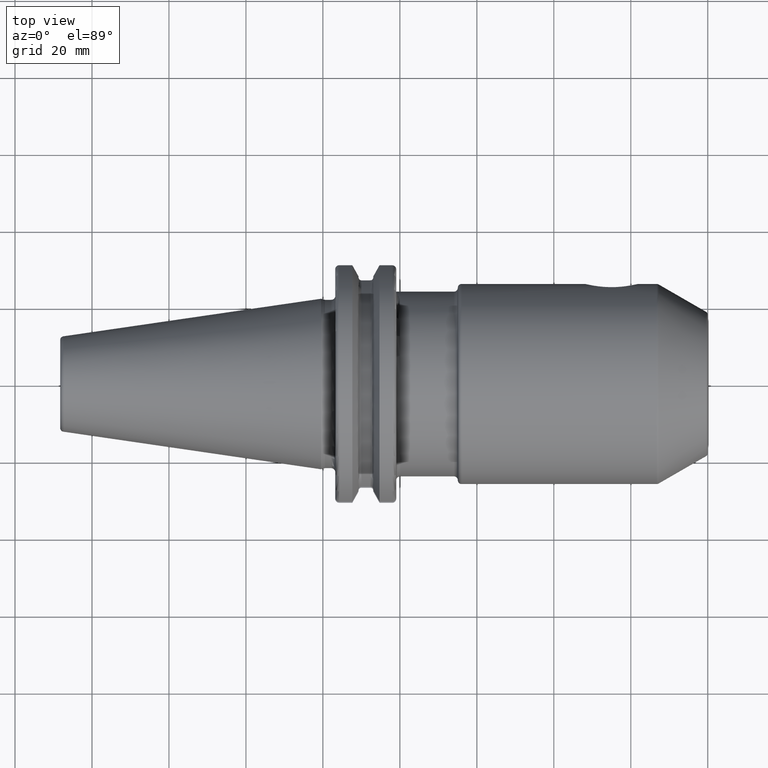
[diagram: clean part render]
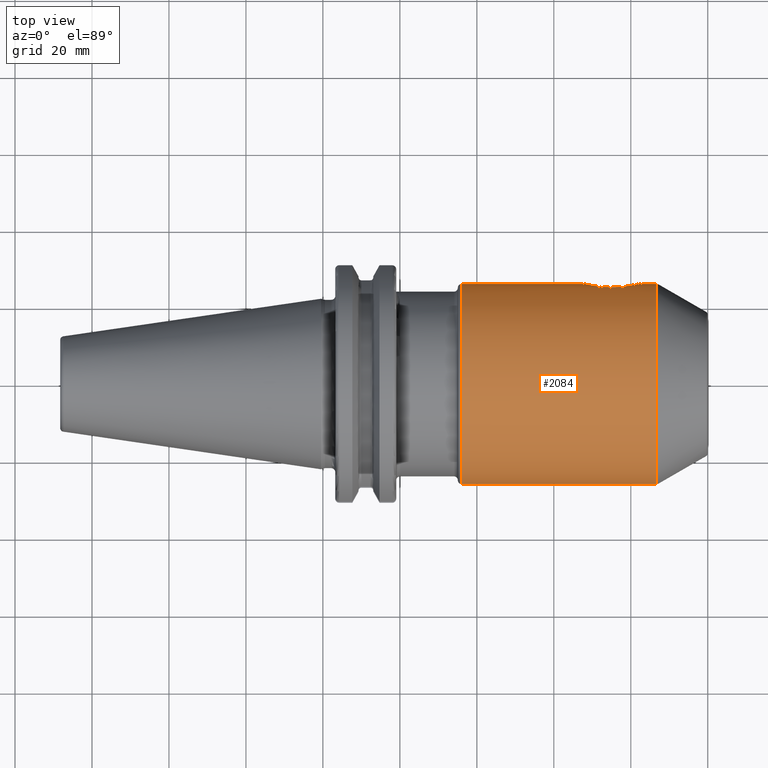
[diagram: same view with one face highlighted and labeled with its STEP entity id]
A machine part, top view. The second image highlights one B-rep face of the part: STEP entity #2084.
In plain terms, the highlighted cylindrical surface (partial cylindrical patch) has radius 26 mm, axis along (1, 0, 0).
Its self-contained STEP definition (entity closure, byte-faithful):
#237=CARTESIAN_POINT('',(8.2E1,2.6E1,0.E0));
#238=CARTESIAN_POINT('',(8.2E1,2.6E1,3.688210766133E-1));
#239=CARTESIAN_POINT('',(8.194243213204E1,2.598441322320E1,1.095664139376E0));
#240=CARTESIAN_POINT('',(8.168752414716E1,2.591696494596E1,2.162422235028E0));
#241=CARTESIAN_POINT('',(8.127175729816E1,2.581201278552E1,3.171916098084E0));
#242=CARTESIAN_POINT('',(8.070400238044E1,2.567891223616E1,4.106649935792E0));
#243=CARTESIAN_POINT('',(7.999354907390E1,2.552926311601E1,4.946624348711E0));
#244=CARTESIAN_POINT('',(7.915555854492E1,2.537731322360E1,5.669446095543E0));
#245=CARTESIAN_POINT('',(7.820640220930E1,2.523801169875E1,6.255660762054E0));
#246=CARTESIAN_POINT('',(7.717991250332E1,2.512738952522E1,6.682407744152E0));
#247=CARTESIAN_POINT('',(7.611123892726E1,2.505684313489E1,6.940001491001E0));
#248=CARTESIAN_POINT('',(7.502229404759E1,2.503202181637E1,7.028241385417E0));
#249=CARTESIAN_POINT('',(7.393189888097E1,2.505493616972E1,6.946824550218E0));
#250=CARTESIAN_POINT('',(7.286145208243E1,2.512381315604E1,6.695724481874E0));
#251=CARTESIAN_POINT('',(7.183355373946E1,2.523293972679E1,6.275879049002E0));
#252=CARTESIAN_POINT('',(7.088067348387E1,2.537132412094E1,5.696027184104E0));
#253=CARTESIAN_POINT('',(7.003332610299E1,2.552391655548E1,4.974214440706E0));
#254=CARTESIAN_POINT('',(6.931335194260E1,2.567499395444E1,4.131392091924E0));
#255=CARTESIAN_POINT('',(6.873795225385E1,2.580961681470E1,3.191876658860E0));
#256=CARTESIAN_POINT('',(6.831690461191E1,2.591580545498E1,2.177216783553E0));
#257=CARTESIAN_POINT('',(6.805845339189E1,2.598417205199E1,1.103787278248E0));
#258=CARTESIAN_POINT('',(6.8E1,2.6E1,3.716713822029E-1));
#259=CARTESIAN_POINT('',(6.8E1,2.6E1,0.E0));
#261=CARTESIAN_POINT('',(8.673205080757E1,0.E0,0.E0));
#262=DIRECTION('',(-1.E0,0.E0,0.E0));
#263=DIRECTION('',(0.E0,-1.E0,0.E0));
#264=AXIS2_PLACEMENT_3D('',#261,#262,#263);
#266=CARTESIAN_POINT('',(3.605E1,0.E0,0.E0));
#267=DIRECTION('',(-1.E0,0.E0,0.E0));
#268=DIRECTION('',(0.E0,-1.E0,0.E0));
#269=AXIS2_PLACEMENT_3D('',#266,#267,#268);
#303=DIRECTION('',(-1.E0,0.E0,2.156849294888E-13));
#304=VECTOR('',#303,3.195E1);
#305=CARTESIAN_POINT('',(6.8E1,2.6E1,0.E0));
#306=LINE('',#305,#304);
#312=DIRECTION('',(-1.E0,0.E0,-1.635472734822E-13));
#313=VECTOR('',#312,5.068205080757E1);
#314=CARTESIAN_POINT('',(8.673205080757E1,-2.6E1,1.382767817627E-12));
#315=LINE('',#314,#313);
#321=DIRECTION('',(-1.E0,0.E0,2.939393582341E-13));
#322=VECTOR('',#321,4.732050807569E0);
#323=CARTESIAN_POINT('',(8.673205080757E1,2.6E1,-1.389343936669E-12));
#324=LINE('',#323,#322);
#1668=CARTESIAN_POINT('',(8.673205080757E1,2.6E1,0.E0));
#1669=CARTESIAN_POINT('',(8.673205080757E1,-2.6E1,0.E0));
#1670=VERTEX_POINT('',#1668);
#1671=VERTEX_POINT('',#1669);
#1693=VERTEX_POINT('',#237);
#1694=VERTEX_POINT('',#259);
#1715=CARTESIAN_POINT('',(3.605E1,2.6E1,6.892725538006E-12));
#1716=VERTEX_POINT('',#1715);
#1729=CARTESIAN_POINT('',(3.605E1,-2.6E1,0.E0));
#1730=VERTEX_POINT('',#1729);
#2066=CARTESIAN_POINT('',(1.50025E1,0.E0,0.E0));
#2067=DIRECTION('',(1.E0,0.E0,0.E0));
#2068=DIRECTION('',(0.E0,-1.E0,0.E0));
#2069=AXIS2_PLACEMENT_3D('',#2066,#2067,#2068);
#2070=CYLINDRICAL_SURFACE('',#2069,2.6E1);
#2072=ORIENTED_EDGE('',*,*,#2071,.F.);
#2074=ORIENTED_EDGE('',*,*,#2073,.F.);
#2076=ORIENTED_EDGE('',*,*,#2075,.F.);
#2078=ORIENTED_EDGE('',*,*,#2077,.T.);
#2079=ORIENTED_EDGE('',*,*,#2048,.T.);
#2081=ORIENTED_EDGE('',*,*,#2080,.F.);
#2082=EDGE_LOOP('',(#2072,#2074,#2076,#2078,#2079,#2081));
#2083=FACE_OUTER_BOUND('',#2082,.F.);
#2084=ADVANCED_FACE('',(#2083),#2070,.T.);
#260=B_SPLINE_CURVE_WITH_KNOTS('',3,(#237,#238,#239,#240,#241,#242,#243,#244,
#245,#246,#247,#248,#249,#250,#251,#252,#253,#254,#255,#256,#257,#258,#259),
.UNSPECIFIED.,.F.,.F.,(4,1,1,1,1,1,1,1,1,1,1,1,1,1,1,1,1,1,1,1,4),(0.E0,5.E-2,
1.E-1,1.5E-1,2.E-1,2.5E-1,3.E-1,3.5E-1,4.E-1,4.5E-1,5.E-1,5.5E-1,6.E-1,6.5E-1,
7.E-1,7.5E-1,8.E-1,8.5E-1,9.E-1,9.5E-1,1.E0),.UNSPECIFIED.);
#265=CIRCLE('',#264,2.6E1);
#270=CIRCLE('',#269,2.6E1);
#2048=EDGE_CURVE('',#1730,#1716,#270,.T.);
#2071=EDGE_CURVE('',#1693,#1694,#260,.T.);
#2073=EDGE_CURVE('',#1670,#1693,#324,.T.);
#2075=EDGE_CURVE('',#1671,#1670,#265,.T.);
#2077=EDGE_CURVE('',#1671,#1730,#315,.T.);
#2080=EDGE_CURVE('',#1694,#1716,#306,.T.);